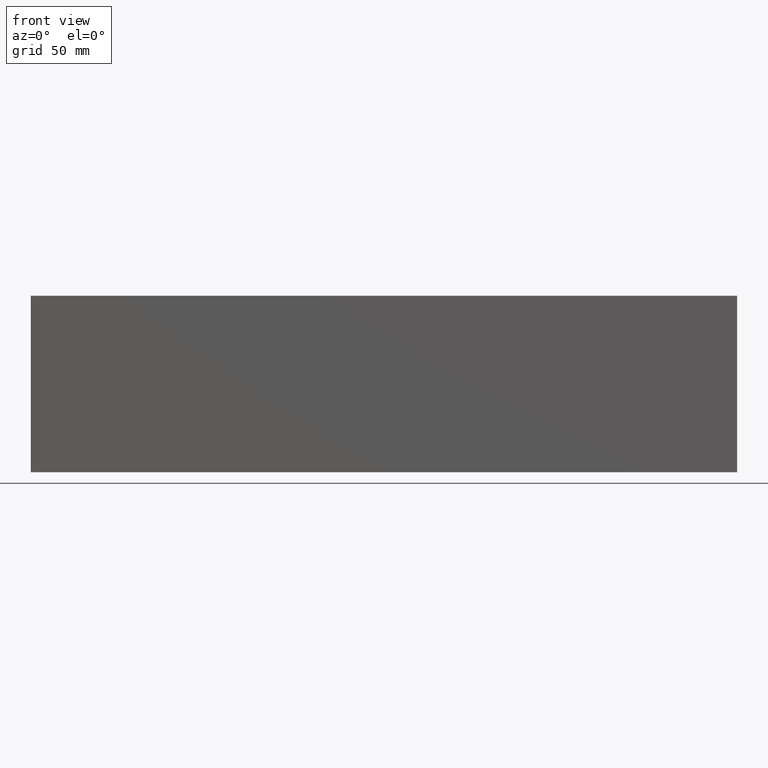
[diagram: clean part render]
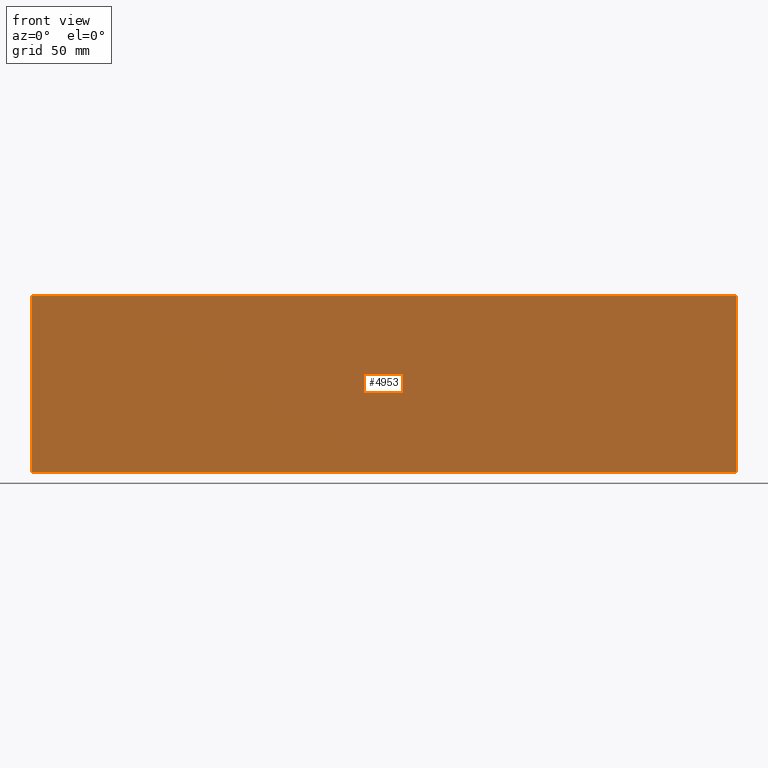
[diagram: same view with one face highlighted and labeled with its STEP entity id]
A machine part, front view. The second image highlights one B-rep face of the part: STEP entity #4953.
In plain terms, the highlighted planar face has unit normal (0, 1, -0).
Its self-contained STEP definition (entity closure, byte-faithful):
#995 = ORIENTED_EDGE ( 'NONE', *, *, #3168, .T. ) ;
#996 = DIRECTION ( 'NONE',  ( 0.000000000000000000, 1.000000000000000000, -0.000000000000000000 ) ) ;
#1056 = DIRECTION ( 'NONE',  ( -0.000000000000000000, -0.000000000000000000, -1.000000000000000000 ) ) ;
#1117 = VECTOR ( 'NONE', #8423, 1000.000000000000000 ) ;
#1521 = VECTOR ( 'NONE', #3927, 1000.000000000000000 ) ;
#2508 = EDGE_CURVE ( 'NONE', #8432, #7891, #3011, .T. ) ;
#2910 = PLANE ( 'NONE',  #6162 ) ;
#3001 = ORIENTED_EDGE ( 'NONE', *, *, #2508, .F. ) ;
#3011 = LINE ( 'NONE', #5006, #6890 ) ;
#3168 = EDGE_CURVE ( 'NONE', #3620, #7891, #4650, .T. ) ;
#3201 = LINE ( 'NONE', #5793, #1521 ) ;
#3620 = VERTEX_POINT ( 'NONE', #4297 ) ;
#3927 = DIRECTION ( 'NONE',  ( -0.000000000000000000, -0.000000000000000000, -1.000000000000000000 ) ) ;
#4014 = DIRECTION ( 'NONE',  ( 1.000000000000000000, -0.000000000000000000, -0.000000000000000000 ) ) ;
#4297 = CARTESIAN_POINT ( 'NONE',  ( 39.94545389815323233, 163.5164761659125077, 0.000000000000000000 ) ) ;
#4372 = ORIENTED_EDGE ( 'NONE', *, *, #7001, .T. ) ;
#4497 = CARTESIAN_POINT ( 'NONE',  ( 438.9454538981532323, 163.5164761659125077, 100.0000000000000000 ) ) ;
#4650 = LINE ( 'NONE', #5972, #8256 ) ;
#4877 = CARTESIAN_POINT ( 'NONE',  ( 438.9454538981532323, 163.5164761659125077, 100.0000000000000000 ) ) ;
#4953 = ADVANCED_FACE ( 'NONE', ( #6779 ), #2910, .F. ) ;
#5006 = CARTESIAN_POINT ( 'NONE',  ( 438.9454538981532323, 163.5164761659125077, 100.0000000000000000 ) ) ;
#5793 = CARTESIAN_POINT ( 'NONE',  ( 39.94545389815323233, 163.5164761659125077, 100.0000000000000000 ) ) ;
#5972 = CARTESIAN_POINT ( 'NONE',  ( 438.9454538981532323, 163.5164761659125077, 0.000000000000000000 ) ) ;
#6066 = ORIENTED_EDGE ( 'NONE', *, *, #7797, .F. ) ;
#6162 = AXIS2_PLACEMENT_3D ( 'NONE', #7471, #996, #6178 ) ;
#6178 = DIRECTION ( 'NONE',  ( 0.000000000000000000, 0.000000000000000000, 1.000000000000000000 ) ) ;
#6412 = CARTESIAN_POINT ( 'NONE',  ( 39.94545389815323233, 163.5164761659125077, 100.0000000000000000 ) ) ;
#6415 = LINE ( 'NONE', #4497, #1117 ) ;
#6581 = VERTEX_POINT ( 'NONE', #6412 ) ;
#6779 = FACE_OUTER_BOUND ( 'NONE', #7011, .T. ) ;
#6890 = VECTOR ( 'NONE', #1056, 1000.000000000000000 ) ;
#7001 = EDGE_CURVE ( 'NONE', #6581, #3620, #3201, .T. ) ;
#7011 = EDGE_LOOP ( 'NONE', ( #995, #3001, #6066, #4372 ) ) ;
#7471 = CARTESIAN_POINT ( 'NONE',  ( 438.9454538981532323, 163.5164761659125077, 100.0000000000000000 ) ) ;
#7797 = EDGE_CURVE ( 'NONE', #6581, #8432, #6415, .T. ) ;
#7891 = VERTEX_POINT ( 'NONE', #8085 ) ;
#8085 = CARTESIAN_POINT ( 'NONE',  ( 438.9454538981532323, 163.5164761659125077, 0.000000000000000000 ) ) ;
#8256 = VECTOR ( 'NONE', #4014, 1000.000000000000000 ) ;
#8423 = DIRECTION ( 'NONE',  ( 1.000000000000000000, -0.000000000000000000, -0.000000000000000000 ) ) ;
#8432 = VERTEX_POINT ( 'NONE', #4877 ) ;